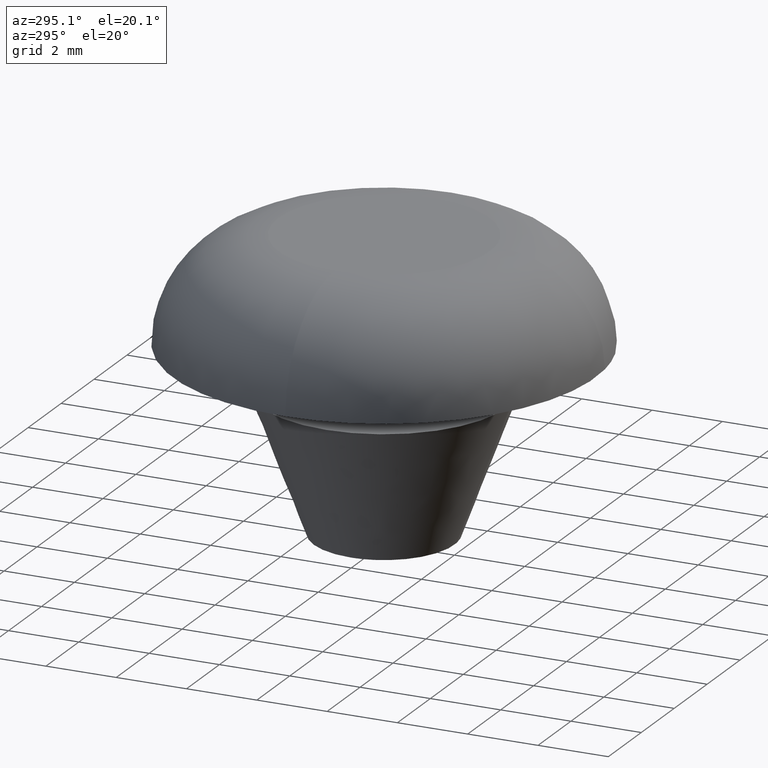
[diagram: clean part render]
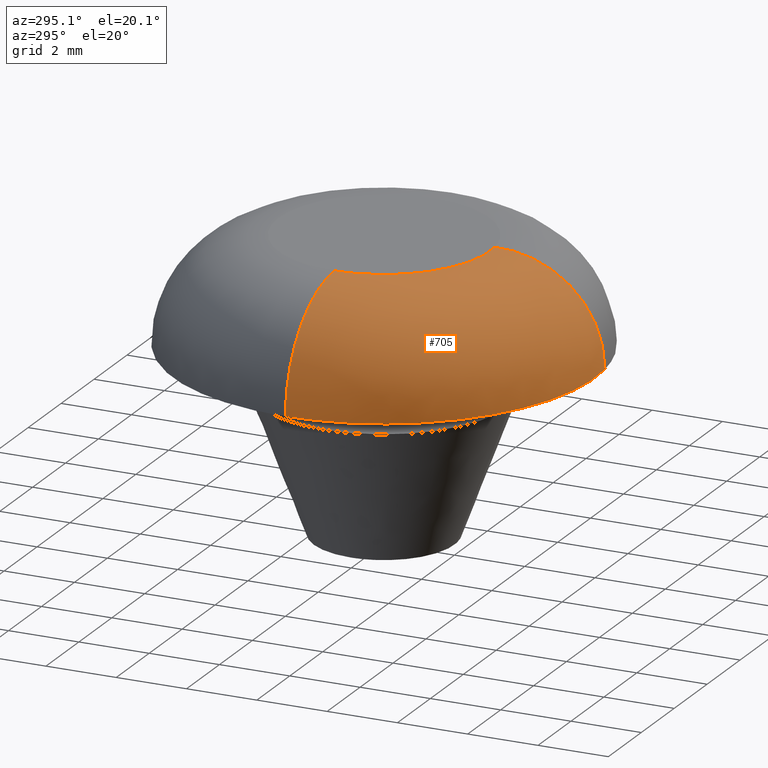
[diagram: same view with one face highlighted and labeled with its STEP entity id]
A machine part, auxiliary view. The second image highlights one B-rep face of the part: STEP entity #705.
In plain terms, the highlighted face is a freeform B-spline surface patch.
Its self-contained STEP definition (entity closure, byte-faithful):
#606=CARTESIAN_POINT('',(0.692784703943390,-5.959869910827088,5.200000000000001));
#607=CARTESIAN_POINT('',(0.692784703943390,-5.959869910827088,8.199999999999999));
#608=CARTESIAN_POINT('',(0.346392351971695,-2.979934955413544,8.200000000000001));
#609=CARTESIAN_POINT('',(0.333976130212763,-2.873121011563450,8.199999999999998));
#610=CARTESIAN_POINT('',(0.321591772737250,-2.766581188927199,8.192300971091600));
#611=CARTESIAN_POINT('',(0.347554635180215,-6.000000000000001,5.200000000000001));
#612=CARTESIAN_POINT('',(0.347554635180215,-6.0,8.199999999999999));
#613=CARTESIAN_POINT('',(0.173777317590108,-3.000000000000000,8.200000000000001));
#614=CARTESIAN_POINT('',(0.167548376045672,-2.892466836912617,8.199999999999999));
#615=CARTESIAN_POINT('',(0.161335420101577,-2.785209640802307,8.192300971091598));
#616=CARTESIAN_POINT('',(0.0,-6.0,5.200000000000000));
#617=CARTESIAN_POINT('',(0.0,-6.0,8.199999999999999));
#618=CARTESIAN_POINT('',(0.0,-3.0,8.199999999999999));
#619=CARTESIAN_POINT('',(0.0,-2.892466836912616,8.200000000000001));
#620=CARTESIAN_POINT('',(0.0,-2.785209640802306,8.192300971091600));
#621=CARTESIAN_POINT('',(-6.0,-6.0,5.199999999999999));
#622=CARTESIAN_POINT('',(-6.0,-6.0,8.199999999999998));
#623=CARTESIAN_POINT('',(-3.0,-3.0,8.199999999999999));
#624=CARTESIAN_POINT('',(-2.892466836912616,-2.892466836912616,8.199999999999999));
#625=CARTESIAN_POINT('',(-2.785209640802309,-2.785209640802309,8.192300971091600));
#626=CARTESIAN_POINT('',(-6.0,0.0,5.200000000000000));
#627=CARTESIAN_POINT('',(-6.0,0.0,8.199999999999999));
#628=CARTESIAN_POINT('',(-3.0,0.0,8.199999999999999));
#629=CARTESIAN_POINT('',(-2.892466836912616,0.0,8.200000000000001));
#630=CARTESIAN_POINT('',(-2.785209640802306,0.0,8.192300971091600));
#638=(BOUNDED_SURFACE()B_SPLINE_SURFACE(2,2,((#606,#611,#616,#621,#626),(#607,#612,#617,#622,#627),(#608,#613,#618,#623,#628),(#609,#614,#619,#624,#629),(#610,#615,#620,#625,#630)),.UNSPECIFIED.,.F.,.F.,.U.)B_SPLINE_SURFACE_WITH_KNOTS((3,2,3),(3,2,3),(0.0,4.970562748477141,5.218842357763574),(0.0,0.795289281308658,10.736414778262940),.UNSPECIFIED.)GEOMETRIC_REPRESENTATION_ITEM()RATIONAL_B_SPLINE_SURFACE(((0.956886155731908,0.976568564840903,1.0,0.707106781186548,1.0),(0.676620689541559,0.690538254492617,0.707106781186548,0.500000000000000,0.707106781186548),(0.956886155731908,0.976568564840903,1.0,0.707106781186548,1.0),(0.942886895695701,0.962281350839006,0.985369983720268,0.696761797466280,0.985369983720268),(0.930286161737110,0.949421429515899,0.972201506066881,0.687450277619666,0.972201506066881)))REPRESENTATION_ITEM('')SURFACE());
#639=CARTESIAN_POINT('',(0.346389949444833,-2.979935234684809,8.199999999999999));
#640=VERTEX_POINT('',#639);
#641=CARTESIAN_POINT('',(-3.0,0.0,8.199999999999999));
#642=VERTEX_POINT('',#641);
#643=CARTESIAN_POINT('',(0.346389949444833,-2.979935234684809,8.199999999999999));
#644=CARTESIAN_POINT('',(0.173776104180414,-3.0,8.200000000000001));
#645=CARTESIAN_POINT('',(0.0,-3.0,8.200000000000001));
#646=CARTESIAN_POINT('',(-3.0,-3.0,8.200000000000001));
#647=CARTESIAN_POINT('',(-3.0,0.0,8.200000000000001));
#655=(BOUNDED_CURVE()B_SPLINE_CURVE(2,(#643,#644,#645,#646,#647),.UNSPECIFIED.,.F.,.U.)B_SPLINE_CURVE_WITH_KNOTS((3,2,3),(0.730000155452255,0.750000000000000,1.0),.UNSPECIFIED.)CURVE()GEOMETRIC_REPRESENTATION_ITEM()RATIONAL_B_SPLINE_CURVE((0.956886424158610,0.976568724618569,1.0,0.707106781186548,1.0))REPRESENTATION_ITEM(''));
#656=EDGE_CURVE('',#640,#642,#655,.T.);
#657=ORIENTED_EDGE('',*,*,#656,.T.);
#658=CARTESIAN_POINT('',(-6.0,0.0,5.200000000000000));
#659=VERTEX_POINT('',#658);
#660=CARTESIAN_POINT('',(-6.0,0.0,5.200000000000000));
#661=CARTESIAN_POINT('',(-6.000000000000001,0.0,8.200000000000001));
#662=CARTESIAN_POINT('',(-3.0,0.0,8.199999999999999));
#670=(BOUNDED_CURVE()B_SPLINE_CURVE(2,(#660,#661,#662),.UNSPECIFIED.,.F.,.U.)B_SPLINE_CURVE_WITH_KNOTS((3,3),(0.0,0.250000000000000),.UNSPECIFIED.)CURVE()GEOMETRIC_REPRESENTATION_ITEM()RATIONAL_B_SPLINE_CURVE((1.0,0.707106781186547,1.0))REPRESENTATION_ITEM(''));
#671=EDGE_CURVE('',#659,#642,#670,.T.);
#672=ORIENTED_EDGE('',*,*,#671,.F.);
#673=CARTESIAN_POINT('',(0.692785140352022,-5.959869860098236,5.199999999999999));
#674=VERTEX_POINT('',#673);
#675=CARTESIAN_POINT('',(0.692785140352022,-5.959869860098236,5.199999999999999));
#676=CARTESIAN_POINT('',(0.347554736594494,-6.000000000000001,5.199999999999999));
#677=CARTESIAN_POINT('',(0.0,-6.0,5.200000000000000));
#678=CARTESIAN_POINT('',(-6.0,-6.0,5.199999999999999));
#679=CARTESIAN_POINT('',(-6.0,0.0,5.200000000000000));
#687=(BOUNDED_CURVE()B_SPLINE_CURVE(2,(#675,#676,#677,#678,#679),.UNSPECIFIED.,.F.,.U.)B_SPLINE_CURVE_WITH_KNOTS((3,2,3),(0.730000013374359,0.750000000000000,1.0),.UNSPECIFIED.)CURVE()GEOMETRIC_REPRESENTATION_ITEM()RATIONAL_B_SPLINE_CURVE((0.956886144514643,0.976568558163960,1.0,0.707106781186548,1.0))REPRESENTATION_ITEM(''));
#688=EDGE_CURVE('',#674,#659,#687,.T.);
#689=ORIENTED_EDGE('',*,*,#688,.F.);
#690=CARTESIAN_POINT('',(0.692785140352022,-5.959869860098236,5.199999999999999));
#691=CARTESIAN_POINT('',(0.692783888889185,-5.959870005570403,8.200000000002532));
#692=CARTESIAN_POINT('',(0.346389949444833,-2.979935234684809,8.199999999999999));
#700=(BOUNDED_CURVE()B_SPLINE_CURVE(2,(#690,#691,#692),.UNSPECIFIED.,.F.,.U.)B_SPLINE_CURVE_WITH_KNOTS((3,3),(0.0,0.250000000000149),.UNSPECIFIED.)CURVE()GEOMETRIC_REPRESENTATION_ITEM()RATIONAL_B_SPLINE_CURVE((0.956886118190660,0.676620662995720,0.956886118190994))REPRESENTATION_ITEM(''));
#701=EDGE_CURVE('',#674,#640,#700,.T.);
#702=ORIENTED_EDGE('',*,*,#701,.T.);
#703=EDGE_LOOP('',(#657,#672,#689,#702));
#704=FACE_OUTER_BOUND('',#703,.T.);
#705=ADVANCED_FACE('',(#704),#638,.T.);